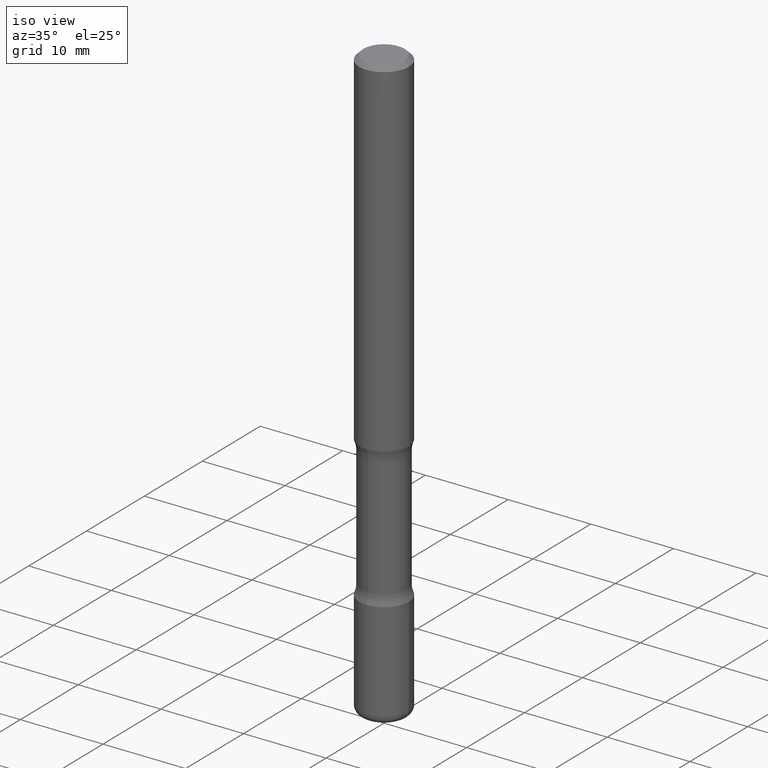
[diagram: clean part render]
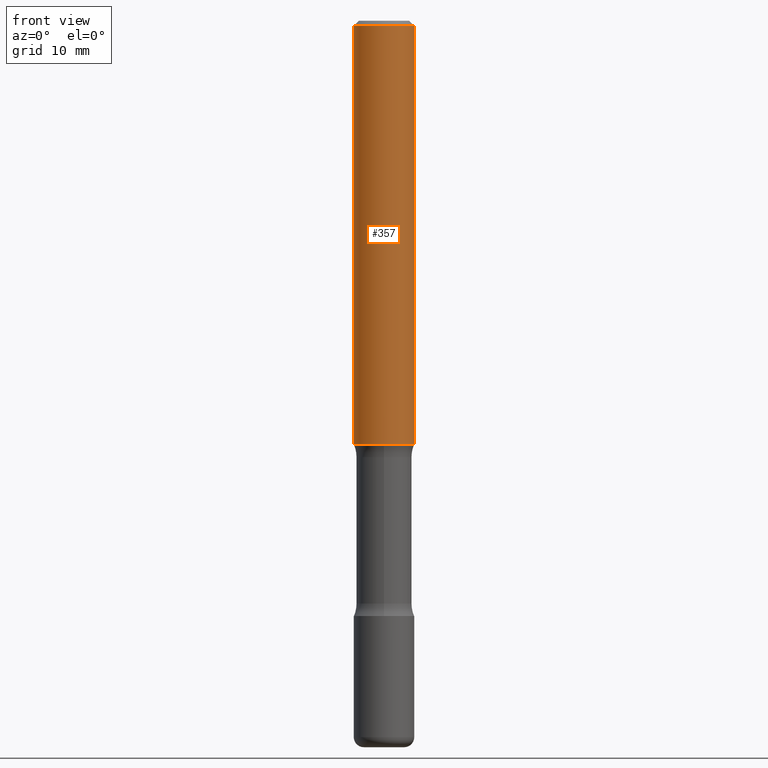
[diagram: tour spotlight — one face highlighted and labeled with its STEP entity id]
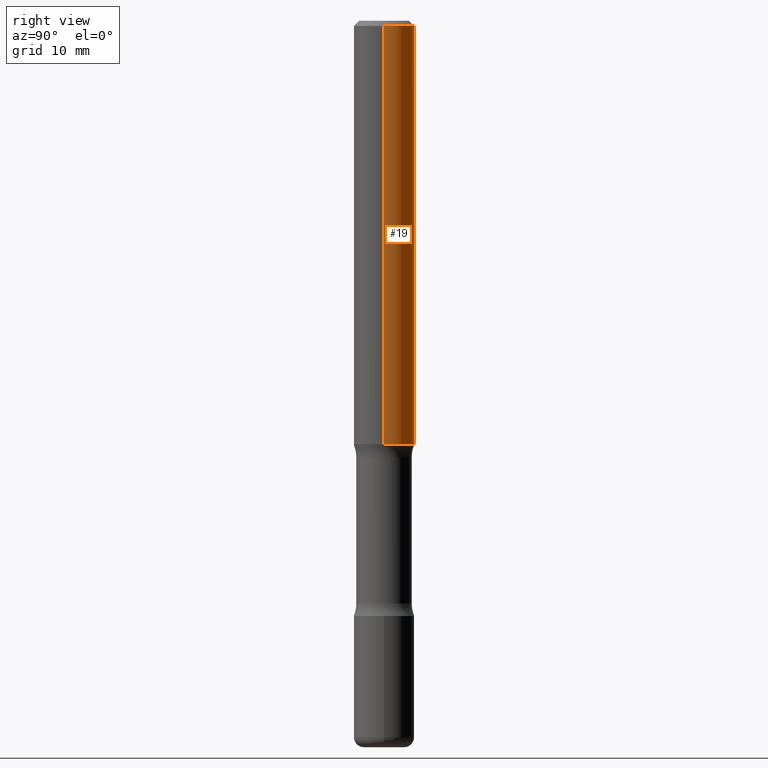
[diagram: tour spotlight — one face highlighted and labeled with its STEP entity id]
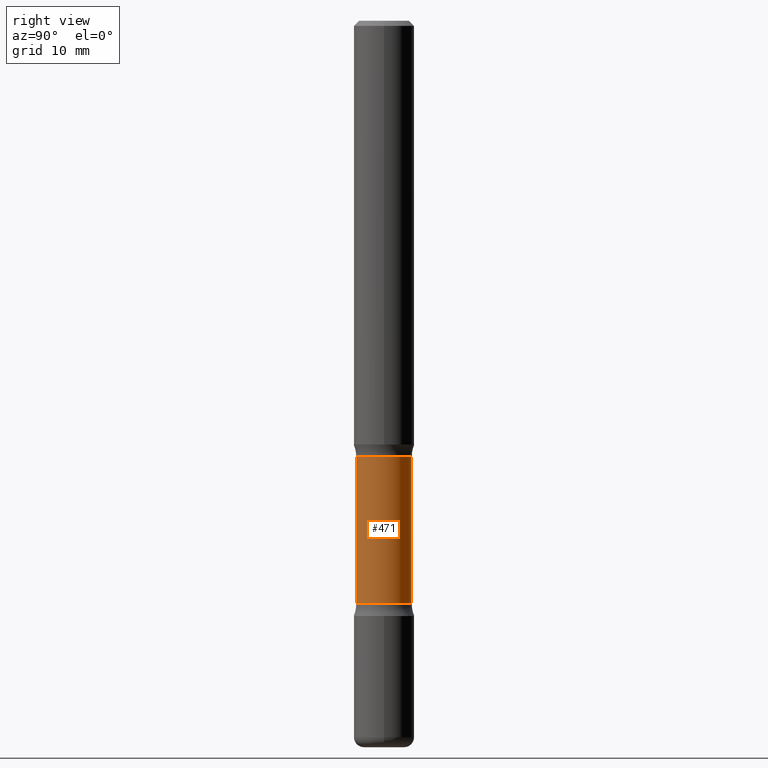
[diagram: tour spotlight — one face highlighted and labeled with its STEP entity id]
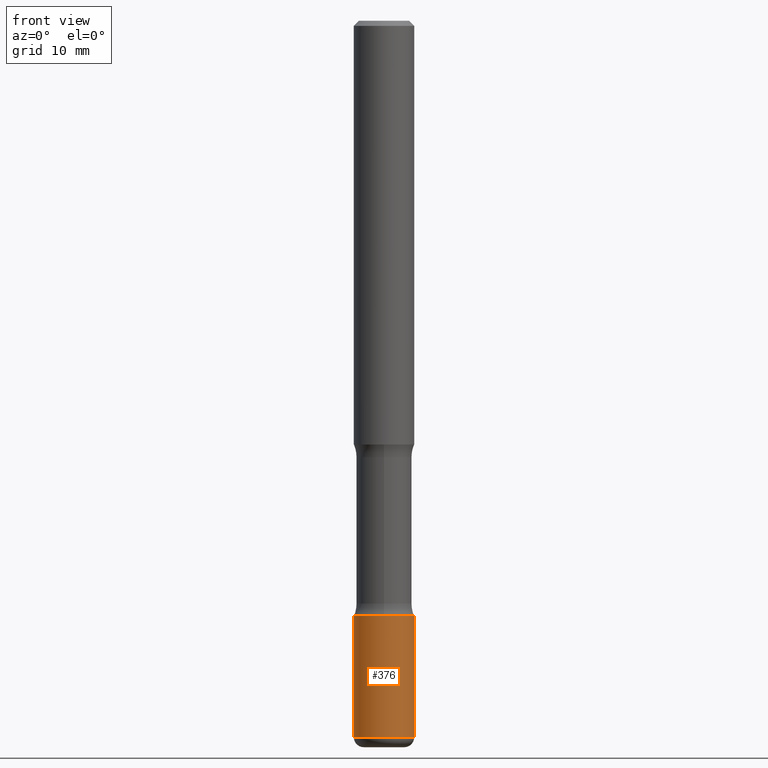
[diagram: tour spotlight — one face highlighted and labeled with its STEP entity id]
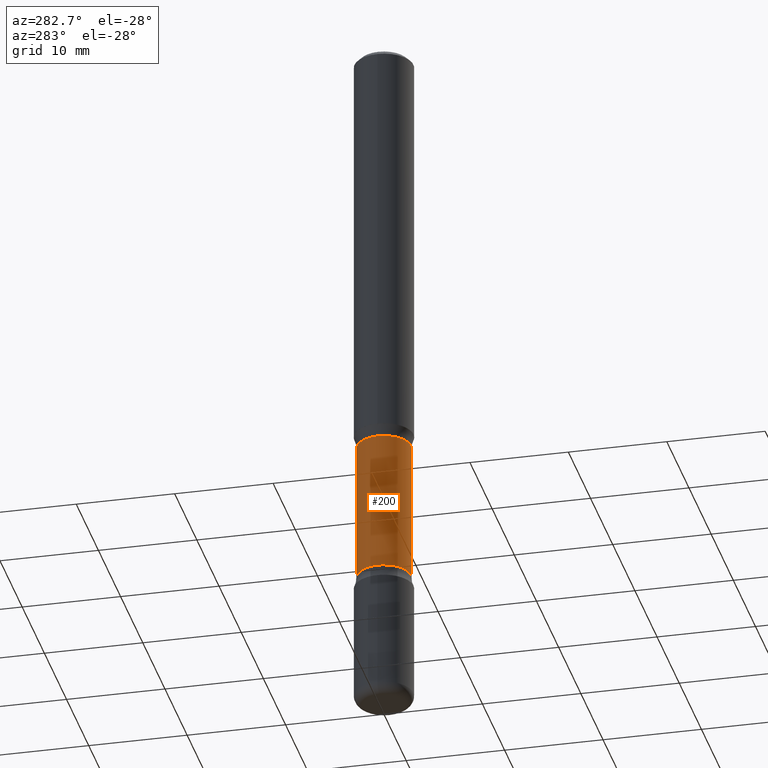
[diagram: tour spotlight — one face highlighted and labeled with its STEP entity id]
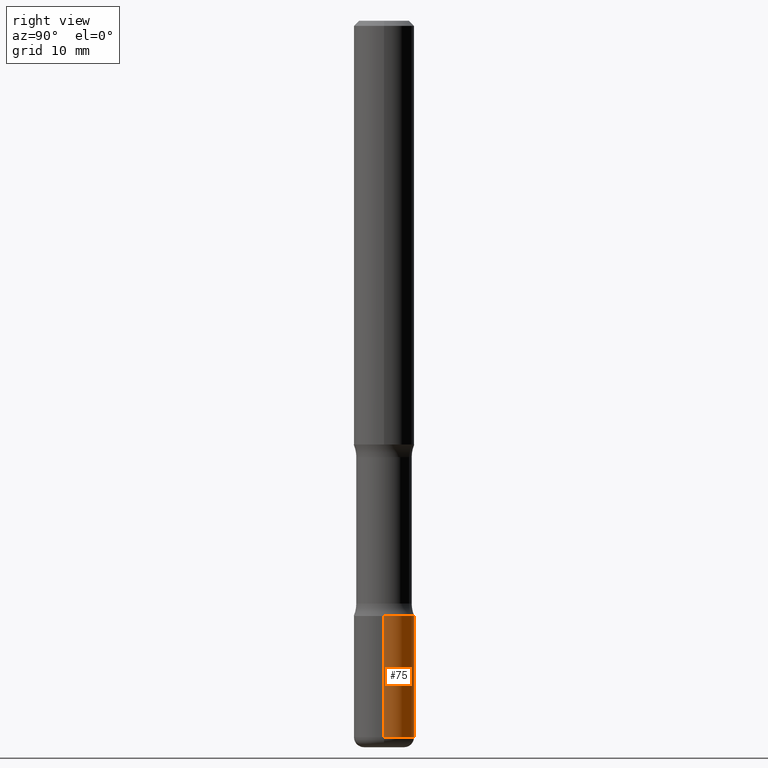
[diagram: tour spotlight — one face highlighted and labeled with its STEP entity id]
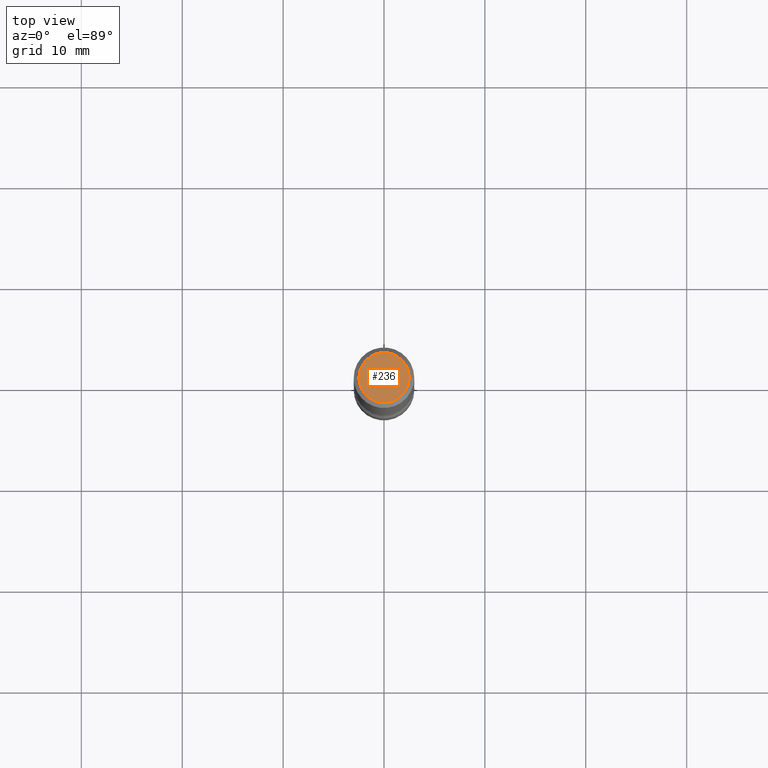
[diagram: tour spotlight — one face highlighted and labeled with its STEP entity id]
A machine part: a face-by-face anatomy tour. The part has 20 B-rep faces; the first image is the clean iso view, then the 7 largest visible faces are spotlighted one at a time (largest first), each with its STEP entity span.

Face 1 — front view, entity #357. In plain terms, the highlighted cylindrical surface (edge-blend (fillet) strip) has radius 2.9997 mm, axis along (-0, 0, 1).
Definition (entity closure, byte-faithful):
#16 = ORIENTED_EDGE ( 'NONE', *, *, #218, .T. ) ;
#26 = DIRECTION ( 'NONE',  ( 1.000000000000000000, -6.982962677686266711E-15, 4.876176775795936353E-29 ) ) ;
#89 = CARTESIAN_POINT ( 'NONE',  ( -0.1181000000000003713, 8.391509709326809581E-16, -5.809262341591062001E-30 ) ) ;
#98 = CARTESIAN_POINT ( 'NONE',  ( 0.1181000000000003713, -8.246878922347507278E-16, 5.758764772215018657E-30 ) ) ;
#112 = DIRECTION ( 'NONE',  ( -2.445468806185136597E-29, 3.491481338843145583E-15, 1.000000000000000000 ) ) ;
#120 = CYLINDRICAL_SURFACE ( 'NONE', #277, 0.1181000000000003713 ) ;
#131 = ORIENTED_EDGE ( 'NONE', *, *, #505, .F. ) ;
#137 = VERTEX_POINT ( 'NONE', #536 ) ;
#157 = DIRECTION ( 'NONE',  ( 1.000000000000000000, -6.982962677686267499E-15, 0.000000000000000000 ) ) ;
#162 = CARTESIAN_POINT ( 'NONE',  ( -0.1181000000000001632, 7.548582654578862463E-16, -0.02000000000000006981 ) ) ;
#183 = DIRECTION ( 'NONE',  ( -2.445468806185136877E-29, 3.491481338843145188E-15, 1.000000000000000000 ) ) ;
#197 = VECTOR ( 'NONE', #392, 39.37007874015748143 ) ;
#218 = EDGE_CURVE ( 'NONE', #137, #523, #401, .T. ) ;
#229 = VECTOR ( 'NONE', #183, 39.37007874015748143 ) ;
#242 = ORIENTED_EDGE ( 'NONE', *, *, #527, .T. ) ;
#253 = LINE ( 'NONE', #89, #197 ) ;
#277 = AXIS2_PLACEMENT_3D ( 'NONE', #420, #416, #26 ) ;
#286 = FACE_OUTER_BOUND ( 'NONE', #470, .T. ) ;
#293 = CARTESIAN_POINT ( 'NONE',  ( -0.1181000000000005795, -2.082346039344311366E-15, -1.653499999999998638 ) ) ;
#297 = DIRECTION ( 'NONE',  ( -2.445468806185136597E-29, 3.491481338843145583E-15, 1.000000000000000000 ) ) ;
#299 = EDGE_CURVE ( 'NONE', #349, #523, #312, .T. ) ;
#312 = CIRCLE ( 'NONE', #434, 0.1181000000000001632 ) ;
#349 = VERTEX_POINT ( 'NONE', #162 ) ;
#357 = ADVANCED_FACE ( 'NONE', ( #286 ), #120, .T. ) ;
#358 = VERTEX_POINT ( 'NONE', #293 ) ;
#377 = CARTESIAN_POINT ( 'NONE',  ( 4.890937612370289799E-31, -6.982962677686315028E-17, -0.02000000000000006981 ) ) ;
#388 = CARTESIAN_POINT ( 'NONE',  ( 4.043582671027119838E-29, -5.773164393777136338E-15, -1.653499999999998638 ) ) ;
#392 = DIRECTION ( 'NONE',  ( -2.445468806185136877E-29, 3.491481338843145188E-15, 1.000000000000000000 ) ) ;
#401 = LINE ( 'NONE', #98, #229 ) ;
#416 = DIRECTION ( 'NONE',  ( -2.445468806185136597E-29, 3.491481338843145583E-15, 1.000000000000000000 ) ) ;
#417 = CIRCLE ( 'NONE', #491, 0.1181000000000005795 ) ;
#420 = CARTESIAN_POINT ( 'NONE',  ( 0.000000000000000000, 0.000000000000000000, 0.000000000000000000 ) ) ;
#432 = CARTESIAN_POINT ( 'NONE',  ( 0.1181000000000001632, -8.800544403136822180E-16, -0.02000000000000006981 ) ) ;
#434 = AXIS2_PLACEMENT_3D ( 'NONE', #377, #112, #157 ) ;
#470 = EDGE_LOOP ( 'NONE', ( #131, #242, #16, #520 ) ) ;
#491 = AXIS2_PLACEMENT_3D ( 'NONE', #388, #297, #516 ) ;
#505 = EDGE_CURVE ( 'NONE', #358, #349, #253, .T. ) ;
#516 = DIRECTION ( 'NONE',  ( 1.000000000000000000, -6.982962677686262766E-15, 0.000000000000000000 ) ) ;
#520 = ORIENTED_EDGE ( 'NONE', *, *, #299, .F. ) ;
#523 = VERTEX_POINT ( 'NONE', #432 ) ;
#527 = EDGE_CURVE ( 'NONE', #358, #137, #417, .T. ) ;
#536 = CARTESIAN_POINT ( 'NONE',  ( 0.1181000000000005795, -6.597852286011887756E-15, -1.653499999999998638 ) ) ;

Face 2 — right view, entity #19. In plain terms, the highlighted cylindrical surface (edge-blend (fillet) strip) has radius 2.9997 mm, axis along (-0, 0, 1).
Definition (entity closure, byte-faithful):
#5 = CARTESIAN_POINT ( 'NONE',  ( 0.000000000000000000, 0.000000000000000000, 0.000000000000000000 ) ) ;
#15 = DIRECTION ( 'NONE',  ( -2.445468806185136597E-29, 3.491481338843145583E-15, 1.000000000000000000 ) ) ;
#19 = ADVANCED_FACE ( 'NONE', ( #129 ), #254, .T. ) ;
#36 = AXIS2_PLACEMENT_3D ( 'NONE', #5, #395, #337 ) ;
#61 = ORIENTED_EDGE ( 'NONE', *, *, #316, .F. ) ;
#89 = CARTESIAN_POINT ( 'NONE',  ( -0.1181000000000003713, 8.391509709326809581E-16, -5.809262341591062001E-30 ) ) ;
#98 = CARTESIAN_POINT ( 'NONE',  ( 0.1181000000000003713, -8.246878922347507278E-16, 5.758764772215018657E-30 ) ) ;
#103 = ORIENTED_EDGE ( 'NONE', *, *, #218, .F. ) ;
#109 = AXIS2_PLACEMENT_3D ( 'NONE', #152, #15, #311 ) ;
#113 = EDGE_LOOP ( 'NONE', ( #370, #415, #61, #103 ) ) ;
#129 = FACE_OUTER_BOUND ( 'NONE', #113, .T. ) ;
#137 = VERTEX_POINT ( 'NONE', #536 ) ;
#152 = CARTESIAN_POINT ( 'NONE',  ( 4.043582671027119838E-29, -5.773164393777136338E-15, -1.653499999999998638 ) ) ;
#158 = DIRECTION ( 'NONE',  ( 1.000000000000000000, -6.982962677686267499E-15, 0.000000000000000000 ) ) ;
#162 = CARTESIAN_POINT ( 'NONE',  ( -0.1181000000000001632, 7.548582654578862463E-16, -0.02000000000000006981 ) ) ;
#169 = AXIS2_PLACEMENT_3D ( 'NONE', #510, #414, #158 ) ;
#183 = DIRECTION ( 'NONE',  ( -2.445468806185136877E-29, 3.491481338843145188E-15, 1.000000000000000000 ) ) ;
#189 = EDGE_CURVE ( 'NONE', #137, #358, #472, .T. ) ;
#197 = VECTOR ( 'NONE', #392, 39.37007874015748143 ) ;
#218 = EDGE_CURVE ( 'NONE', #137, #523, #401, .T. ) ;
#229 = VECTOR ( 'NONE', #183, 39.37007874015748143 ) ;
#253 = LINE ( 'NONE', #89, #197 ) ;
#254 = CYLINDRICAL_SURFACE ( 'NONE', #36, 0.1181000000000003713 ) ;
#293 = CARTESIAN_POINT ( 'NONE',  ( -0.1181000000000005795, -2.082346039344311366E-15, -1.653499999999998638 ) ) ;
#311 = DIRECTION ( 'NONE',  ( 1.000000000000000000, -6.982962677686262766E-15, 0.000000000000000000 ) ) ;
#316 = EDGE_CURVE ( 'NONE', #523, #349, #324, .T. ) ;
#324 = CIRCLE ( 'NONE', #169, 0.1181000000000001632 ) ;
#337 = DIRECTION ( 'NONE',  ( 1.000000000000000000, -6.982962677686266711E-15, 4.876176775795936353E-29 ) ) ;
#349 = VERTEX_POINT ( 'NONE', #162 ) ;
#358 = VERTEX_POINT ( 'NONE', #293 ) ;
#370 = ORIENTED_EDGE ( 'NONE', *, *, #189, .T. ) ;
#392 = DIRECTION ( 'NONE',  ( -2.445468806185136877E-29, 3.491481338843145188E-15, 1.000000000000000000 ) ) ;
#395 = DIRECTION ( 'NONE',  ( -2.445468806185136597E-29, 3.491481338843145583E-15, 1.000000000000000000 ) ) ;
#401 = LINE ( 'NONE', #98, #229 ) ;
#414 = DIRECTION ( 'NONE',  ( -2.445468806185136597E-29, 3.491481338843145583E-15, 1.000000000000000000 ) ) ;
#415 = ORIENTED_EDGE ( 'NONE', *, *, #505, .T. ) ;
#432 = CARTESIAN_POINT ( 'NONE',  ( 0.1181000000000001632, -8.800544403136822180E-16, -0.02000000000000006981 ) ) ;
#472 = CIRCLE ( 'NONE', #109, 0.1181000000000005795 ) ;
#505 = EDGE_CURVE ( 'NONE', #358, #349, #253, .T. ) ;
#510 = CARTESIAN_POINT ( 'NONE',  ( 4.890937612370289799E-31, -6.982962677686315028E-17, -0.02000000000000006981 ) ) ;
#523 = VERTEX_POINT ( 'NONE', #432 ) ;
#536 = CARTESIAN_POINT ( 'NONE',  ( 0.1181000000000005795, -6.597852286011887756E-15, -1.653499999999998638 ) ) ;

Face 3 — right view, entity #471. In plain terms, the highlighted cylindrical surface (edge-blend (fillet) strip) has radius 2.7445 mm, axis along (0, -0, -1).
Definition (entity closure, byte-faithful):
#4 = VERTEX_POINT ( 'NONE', #171 ) ;
#11 = AXIS2_PLACEMENT_3D ( 'NONE', #390, #481, #393 ) ;
#40 = DIRECTION ( 'NONE',  ( 6.982962677686265922E-15, 1.000000000000000000, -2.528318365260769736E-15 ) ) ;
#43 = CARTESIAN_POINT ( 'NONE',  ( 7.545091173240566728E-16, 0.1080499999999920691, -2.273692999480724897 ) ) ;
#57 = DIRECTION ( 'NONE',  ( 2.515355941959131799E-29, -3.391398982686043015E-15, -1.000000000000000000 ) ) ;
#68 = EDGE_CURVE ( 'NONE', #475, #232, #248, .T. ) ;
#85 = DIRECTION ( 'NONE',  ( 2.515355941959131519E-29, -3.391398982686043410E-15, -1.000000000000000000 ) ) ;
#88 = VECTOR ( 'NONE', #334, 39.37007874015748143 ) ;
#114 = LINE ( 'NONE', #331, #88 ) ;
#123 = EDGE_CURVE ( 'NONE', #4, #232, #314, .T. ) ;
#150 = EDGE_LOOP ( 'NONE', ( #542, #379, #173, #488 ) ) ;
#155 = CIRCLE ( 'NONE', #333, 0.1080500000000000627 ) ;
#171 = CARTESIAN_POINT ( 'NONE',  ( -7.757508110979756422E-16, -0.1080500000000060579, -1.702607000519272828 ) ) ;
#173 = ORIENTED_EDGE ( 'NONE', *, *, #68, .F. ) ;
#202 = CARTESIAN_POINT ( 'NONE',  ( 7.545091173240426705E-16, 0.1080499999999940536, -1.702607000519273273 ) ) ;
#210 = CYLINDRICAL_SURFACE ( 'NONE', #482, 0.1080500000000000210 ) ;
#232 = VERTEX_POINT ( 'NONE', #528 ) ;
#248 = CIRCLE ( 'NONE', #11, 0.1080500000000000071 ) ;
#295 = FACE_OUTER_BOUND ( 'NONE', #150, .T. ) ;
#305 = EDGE_CURVE ( 'NONE', #367, #475, #114, .T. ) ;
#314 = LINE ( 'NONE', #356, #489 ) ;
#331 = CARTESIAN_POINT ( 'NONE',  ( 7.545091173240708723E-16, 0.1080499999999901678, -2.834599999999999120 ) ) ;
#333 = AXIS2_PLACEMENT_3D ( 'NONE', #436, #383, #40 ) ;
#334 = DIRECTION ( 'NONE',  ( 2.515355941959131799E-29, -3.391398982686043015E-15, -1.000000000000000000 ) ) ;
#338 = DIRECTION ( 'NONE',  ( 6.982962677686265922E-15, 1.000000000000000000, -5.056636730521541050E-15 ) ) ;
#356 = CARTESIAN_POINT ( 'NONE',  ( -7.412768086591444935E-16, -0.1080500000000098743, -2.834599999999998232 ) ) ;
#367 = VERTEX_POINT ( 'NONE', #202 ) ;
#379 = ORIENTED_EDGE ( 'NONE', *, *, #123, .T. ) ;
#383 = DIRECTION ( 'NONE',  ( 2.515355941959131519E-29, -3.391398982686043410E-15, -1.000000000000000000 ) ) ;
#390 = CARTESIAN_POINT ( 'NONE',  ( 5.556813357458885632E-29, -7.943471422261023875E-15, -2.273692999480724453 ) ) ;
#393 = DIRECTION ( 'NONE',  ( 6.982962677686265922E-15, 1.000000000000000000, -2.528318365260770920E-15 ) ) ;
#436 = CARTESIAN_POINT ( 'NONE',  ( 4.120328796601531988E-29, -6.006690946356916109E-15, -1.702607000519273051 ) ) ;
#454 = EDGE_CURVE ( 'NONE', #367, #4, #155, .T. ) ;
#471 = ADVANCED_FACE ( 'NONE', ( #295 ), #210, .T. ) ;
#475 = VERTEX_POINT ( 'NONE', #43 ) ;
#481 = DIRECTION ( 'NONE',  ( 2.515355941959131519E-29, -3.391398982686043410E-15, -1.000000000000000000 ) ) ;
#482 = AXIS2_PLACEMENT_3D ( 'NONE', #557, #85, #338 ) ;
#488 = ORIENTED_EDGE ( 'NONE', *, *, #305, .F. ) ;
#489 = VECTOR ( 'NONE', #57, 39.37007874015748143 ) ;
#528 = CARTESIAN_POINT ( 'NONE',  ( -7.757508110979598650E-16, -0.1080500000000079452, -2.273692999480724009 ) ) ;
#542 = ORIENTED_EDGE ( 'NONE', *, *, #454, .T. ) ;
#557 = CARTESIAN_POINT ( 'NONE',  ( 6.967694114101516369E-29, -9.845730853203571031E-15, -2.834599999999998676 ) ) ;

Face 4 — front view, entity #376. In plain terms, the highlighted cylindrical surface (edge-blend (fillet) strip) has radius 2.9997 mm, axis along (-0, 0, 1).
Definition (entity closure, byte-faithful):
#23 = VERTEX_POINT ( 'NONE', #301 ) ;
#29 = CYLINDRICAL_SURFACE ( 'NONE', #532, 0.1181000000000001077 ) ;
#30 = EDGE_CURVE ( 'NONE', #76, #23, #438, .T. ) ;
#35 = ORIENTED_EDGE ( 'NONE', *, *, #382, .T. ) ;
#64 = CIRCLE ( 'NONE', #456, 0.1181000000000000660 ) ;
#66 = ORIENTED_EDGE ( 'NONE', *, *, #273, .F. ) ;
#70 = DIRECTION ( 'NONE',  ( -2.445468806185136877E-29, 3.491481338843145188E-15, 1.000000000000000000 ) ) ;
#74 = LINE ( 'NONE', #469, #288 ) ;
#76 = VERTEX_POINT ( 'NONE', #555 ) ;
#82 = DIRECTION ( 'NONE',  ( -2.445468806185136597E-29, 3.491481338843145583E-15, 1.000000000000000000 ) ) ;
#83 = EDGE_CURVE ( 'NONE', #76, #462, #437, .T. ) ;
#111 = VECTOR ( 'NONE', #384, 39.37007874015748143 ) ;
#195 = VERTEX_POINT ( 'NONE', #233 ) ;
#233 = CARTESIAN_POINT ( 'NONE',  ( 0.1181000000000000660, -8.934700746099602364E-15, -2.322799999999998644 ) ) ;
#245 = ORIENTED_EDGE ( 'NONE', *, *, #83, .T. ) ;
#249 = DIRECTION ( 'NONE',  ( 1.000000000000000000, -6.982962677686265133E-15, 0.000000000000000000 ) ) ;
#251 = ORIENTED_EDGE ( 'NONE', *, *, #30, .F. ) ;
#273 = EDGE_CURVE ( 'NONE', #23, #195, #64, .T. ) ;
#282 = CARTESIAN_POINT ( 'NONE',  ( 5.680334943006831795E-29, -8.110012853864854101E-15, -2.322799999999998644 ) ) ;
#288 = VECTOR ( 'NONE', #70, 39.37007874015748143 ) ;
#291 = DIRECTION ( 'NONE',  ( -2.445468806185136597E-29, 3.491481338843145583E-15, 1.000000000000000000 ) ) ;
#292 = AXIS2_PLACEMENT_3D ( 'NONE', #473, #82, #249 ) ;
#301 = CARTESIAN_POINT ( 'NONE',  ( -0.1181000000000000660, -8.095549775166928111E-15, -2.322799999999998644 ) ) ;
#330 = DIRECTION ( 'NONE',  ( -2.445468806185136597E-29, 3.491481338843145583E-15, 1.000000000000000000 ) ) ;
#335 = EDGE_LOOP ( 'NONE', ( #251, #245, #35, #66 ) ) ;
#376 = ADVANCED_FACE ( 'NONE', ( #461 ), #29, .T. ) ;
#382 = EDGE_CURVE ( 'NONE', #462, #195, #74, .T. ) ;
#384 = DIRECTION ( 'NONE',  ( -2.445468806185136877E-29, 3.491481338843145188E-15, 1.000000000000000000 ) ) ;
#437 = CIRCLE ( 'NONE', #292, 0.1181000000000001354 ) ;
#438 = LINE ( 'NONE', #440, #111 ) ;
#440 = CARTESIAN_POINT ( 'NONE',  ( -0.1181000000000001077, 8.391509709326790846E-16, -5.809262341591049389E-30 ) ) ;
#456 = AXIS2_PLACEMENT_3D ( 'NONE', #282, #291, #468 ) ;
#461 = FACE_OUTER_BOUND ( 'NONE', #335, .T. ) ;
#462 = VERTEX_POINT ( 'NONE', #480 ) ;
#468 = DIRECTION ( 'NONE',  ( 1.000000000000000000, -6.982962677686269077E-15, 0.000000000000000000 ) ) ;
#469 = CARTESIAN_POINT ( 'NONE',  ( 0.1181000000000001077, -8.246878922347488542E-16, 5.758764772215005345E-30 ) ) ;
#473 = CARTESIAN_POINT ( 'NONE',  ( 6.835574407048691801E-29, -9.759388638334358515E-15, -2.795199999999999019 ) ) ;
#480 = CARTESIAN_POINT ( 'NONE',  ( 0.1181000000000003020, -1.058407653056910836E-14, -2.795199999999999019 ) ) ;
#504 = CARTESIAN_POINT ( 'NONE',  ( 0.000000000000000000, 0.000000000000000000, 0.000000000000000000 ) ) ;
#532 = AXIS2_PLACEMENT_3D ( 'NONE', #504, #330, #551 ) ;
#551 = DIRECTION ( 'NONE',  ( 1.000000000000000000, -6.982962677686266711E-15, 4.876176775795935793E-29 ) ) ;
#555 = CARTESIAN_POINT ( 'NONE',  ( -0.1181000000000003020, -8.920237667401677951E-15, -2.795199999999999019 ) ) ;

Face 5 — auxiliary view, entity #200. In plain terms, the highlighted cylindrical surface (edge-blend (fillet) strip) has radius 2.7445 mm, axis along (0, -0, -1).
Definition (entity closure, byte-faithful):
#4 = VERTEX_POINT ( 'NONE', #171 ) ;
#6 = EDGE_CURVE ( 'NONE', #232, #475, #419, .T. ) ;
#18 = CYLINDRICAL_SURFACE ( 'NONE', #359, 0.1080500000000000210 ) ;
#43 = CARTESIAN_POINT ( 'NONE',  ( 7.545091173240566728E-16, 0.1080499999999920691, -2.273692999480724897 ) ) ;
#47 = DIRECTION ( 'NONE',  ( 2.515355941959131519E-29, -3.391398982686043410E-15, -1.000000000000000000 ) ) ;
#57 = DIRECTION ( 'NONE',  ( 2.515355941959131799E-29, -3.391398982686043015E-15, -1.000000000000000000 ) ) ;
#88 = VECTOR ( 'NONE', #334, 39.37007874015748143 ) ;
#114 = LINE ( 'NONE', #331, #88 ) ;
#121 = ORIENTED_EDGE ( 'NONE', *, *, #123, .F. ) ;
#123 = EDGE_CURVE ( 'NONE', #4, #232, #314, .T. ) ;
#140 = EDGE_CURVE ( 'NONE', #4, #367, #141, .T. ) ;
#141 = CIRCLE ( 'NONE', #255, 0.1080500000000000627 ) ;
#156 = ORIENTED_EDGE ( 'NONE', *, *, #305, .T. ) ;
#163 = ORIENTED_EDGE ( 'NONE', *, *, #140, .T. ) ;
#171 = CARTESIAN_POINT ( 'NONE',  ( -7.757508110979756422E-16, -0.1080500000000060579, -1.702607000519272828 ) ) ;
#179 = CARTESIAN_POINT ( 'NONE',  ( 4.120328796601531988E-29, -6.006690946356916109E-15, -1.702607000519273051 ) ) ;
#187 = CARTESIAN_POINT ( 'NONE',  ( 6.967694114101516369E-29, -9.845730853203571031E-15, -2.834599999999998676 ) ) ;
#200 = ADVANCED_FACE ( 'NONE', ( #404 ), #18, .T. ) ;
#202 = CARTESIAN_POINT ( 'NONE',  ( 7.545091173240426705E-16, 0.1080499999999940536, -1.702607000519273273 ) ) ;
#232 = VERTEX_POINT ( 'NONE', #528 ) ;
#255 = AXIS2_PLACEMENT_3D ( 'NONE', #179, #270, #278 ) ;
#268 = DIRECTION ( 'NONE',  ( 6.982962677686265922E-15, 1.000000000000000000, -5.056636730521541050E-15 ) ) ;
#270 = DIRECTION ( 'NONE',  ( 2.515355941959131519E-29, -3.391398982686043410E-15, -1.000000000000000000 ) ) ;
#278 = DIRECTION ( 'NONE',  ( 6.982962677686265922E-15, 1.000000000000000000, -2.528318365260769736E-15 ) ) ;
#296 = CARTESIAN_POINT ( 'NONE',  ( 5.556813357458885632E-29, -7.943471422261023875E-15, -2.273692999480724453 ) ) ;
#305 = EDGE_CURVE ( 'NONE', #367, #475, #114, .T. ) ;
#314 = LINE ( 'NONE', #356, #489 ) ;
#318 = DIRECTION ( 'NONE',  ( 2.515355941959131519E-29, -3.391398982686043410E-15, -1.000000000000000000 ) ) ;
#331 = CARTESIAN_POINT ( 'NONE',  ( 7.545091173240708723E-16, 0.1080499999999901678, -2.834599999999999120 ) ) ;
#334 = DIRECTION ( 'NONE',  ( 2.515355941959131799E-29, -3.391398982686043015E-15, -1.000000000000000000 ) ) ;
#356 = CARTESIAN_POINT ( 'NONE',  ( -7.412768086591444935E-16, -0.1080500000000098743, -2.834599999999998232 ) ) ;
#359 = AXIS2_PLACEMENT_3D ( 'NONE', #187, #318, #268 ) ;
#367 = VERTEX_POINT ( 'NONE', #202 ) ;
#404 = FACE_OUTER_BOUND ( 'NONE', #553, .T. ) ;
#410 = AXIS2_PLACEMENT_3D ( 'NONE', #296, #47, #525 ) ;
#412 = ORIENTED_EDGE ( 'NONE', *, *, #6, .F. ) ;
#419 = CIRCLE ( 'NONE', #410, 0.1080500000000000071 ) ;
#475 = VERTEX_POINT ( 'NONE', #43 ) ;
#489 = VECTOR ( 'NONE', #57, 39.37007874015748143 ) ;
#525 = DIRECTION ( 'NONE',  ( 6.982962677686265922E-15, 1.000000000000000000, -2.528318365260770920E-15 ) ) ;
#528 = CARTESIAN_POINT ( 'NONE',  ( -7.757508110979598650E-16, -0.1080500000000079452, -2.273692999480724009 ) ) ;
#553 = EDGE_LOOP ( 'NONE', ( #121, #163, #156, #412 ) ) ;

Face 6 — right view, entity #75. In plain terms, the highlighted cylindrical surface (edge-blend (fillet) strip) has radius 2.9997 mm, axis along (-0, 0, 1).
Definition (entity closure, byte-faithful):
#23 = VERTEX_POINT ( 'NONE', #301 ) ;
#25 = EDGE_CURVE ( 'NONE', #195, #23, #281, .T. ) ;
#30 = EDGE_CURVE ( 'NONE', #76, #23, #438, .T. ) ;
#34 = AXIS2_PLACEMENT_3D ( 'NONE', #235, #237, #332 ) ;
#38 = DIRECTION ( 'NONE',  ( -2.445468806185136597E-29, 3.491481338843145583E-15, 1.000000000000000000 ) ) ;
#70 = DIRECTION ( 'NONE',  ( -2.445468806185136877E-29, 3.491481338843145188E-15, 1.000000000000000000 ) ) ;
#74 = LINE ( 'NONE', #469, #288 ) ;
#75 = ADVANCED_FACE ( 'NONE', ( #176 ), #134, .T. ) ;
#76 = VERTEX_POINT ( 'NONE', #555 ) ;
#87 = ORIENTED_EDGE ( 'NONE', *, *, #382, .F. ) ;
#93 = CARTESIAN_POINT ( 'NONE',  ( 0.000000000000000000, 0.000000000000000000, 0.000000000000000000 ) ) ;
#111 = VECTOR ( 'NONE', #384, 39.37007874015748143 ) ;
#134 = CYLINDRICAL_SURFACE ( 'NONE', #352, 0.1181000000000001077 ) ;
#166 = DIRECTION ( 'NONE',  ( 1.000000000000000000, -6.982962677686266711E-15, 4.876176775795935793E-29 ) ) ;
#176 = FACE_OUTER_BOUND ( 'NONE', #323, .T. ) ;
#195 = VERTEX_POINT ( 'NONE', #233 ) ;
#233 = CARTESIAN_POINT ( 'NONE',  ( 0.1181000000000000660, -8.934700746099602364E-15, -2.322799999999998644 ) ) ;
#235 = CARTESIAN_POINT ( 'NONE',  ( 6.835574407048691801E-29, -9.759388638334358515E-15, -2.795199999999999019 ) ) ;
#237 = DIRECTION ( 'NONE',  ( -2.445468806185136597E-29, 3.491481338843145583E-15, 1.000000000000000000 ) ) ;
#246 = CIRCLE ( 'NONE', #34, 0.1181000000000001354 ) ;
#260 = DIRECTION ( 'NONE',  ( -2.445468806185136597E-29, 3.491481338843145583E-15, 1.000000000000000000 ) ) ;
#281 = CIRCLE ( 'NONE', #329, 0.1181000000000000660 ) ;
#288 = VECTOR ( 'NONE', #70, 39.37007874015748143 ) ;
#301 = CARTESIAN_POINT ( 'NONE',  ( -0.1181000000000000660, -8.095549775166928111E-15, -2.322799999999998644 ) ) ;
#309 = ORIENTED_EDGE ( 'NONE', *, *, #30, .T. ) ;
#323 = EDGE_LOOP ( 'NONE', ( #540, #309, #478, #87 ) ) ;
#329 = AXIS2_PLACEMENT_3D ( 'NONE', #477, #38, #429 ) ;
#332 = DIRECTION ( 'NONE',  ( 1.000000000000000000, -6.982962677686265133E-15, 0.000000000000000000 ) ) ;
#352 = AXIS2_PLACEMENT_3D ( 'NONE', #93, #260, #166 ) ;
#368 = EDGE_CURVE ( 'NONE', #462, #76, #246, .T. ) ;
#382 = EDGE_CURVE ( 'NONE', #462, #195, #74, .T. ) ;
#384 = DIRECTION ( 'NONE',  ( -2.445468806185136877E-29, 3.491481338843145188E-15, 1.000000000000000000 ) ) ;
#429 = DIRECTION ( 'NONE',  ( 1.000000000000000000, -6.982962677686269077E-15, 0.000000000000000000 ) ) ;
#438 = LINE ( 'NONE', #440, #111 ) ;
#440 = CARTESIAN_POINT ( 'NONE',  ( -0.1181000000000001077, 8.391509709326790846E-16, -5.809262341591049389E-30 ) ) ;
#462 = VERTEX_POINT ( 'NONE', #480 ) ;
#469 = CARTESIAN_POINT ( 'NONE',  ( 0.1181000000000001077, -8.246878922347488542E-16, 5.758764772215005345E-30 ) ) ;
#477 = CARTESIAN_POINT ( 'NONE',  ( 5.680334943006831795E-29, -8.110012853864854101E-15, -2.322799999999998644 ) ) ;
#478 = ORIENTED_EDGE ( 'NONE', *, *, #25, .F. ) ;
#480 = CARTESIAN_POINT ( 'NONE',  ( 0.1181000000000003020, -1.058407653056910836E-14, -2.795199999999999019 ) ) ;
#540 = ORIENTED_EDGE ( 'NONE', *, *, #368, .T. ) ;
#555 = CARTESIAN_POINT ( 'NONE',  ( -0.1181000000000003020, -8.920237667401677951E-15, -2.795199999999999019 ) ) ;

Face 7 — top view, entity #236. In plain terms, the highlighted planar face has unit normal (0, -0, -1).
Definition (entity closure, byte-faithful):
#78 = EDGE_LOOP ( 'NONE', ( #207, #451 ) ) ;
#95 = DIRECTION ( 'NONE',  ( 1.000000000000000000, -6.982962677686265922E-15, 4.877161320636760066E-29 ) ) ;
#116 = CIRCLE ( 'NONE', #219, 0.09810000000000014542 ) ;
#130 = CARTESIAN_POINT ( 'NONE',  ( -0.09810000000000014542, 7.199434520694548930E-16, -3.414809992080820212E-17 ) ) ;
#136 = FACE_OUTER_BOUND ( 'NONE', #78, .T. ) ;
#207 = ORIENTED_EDGE ( 'NONE', *, *, #214, .T. ) ;
#212 = CIRCLE ( 'NONE', #501, 0.09810000000000014542 ) ;
#214 = EDGE_CURVE ( 'NONE', #503, #294, #116, .T. ) ;
#219 = AXIS2_PLACEMENT_3D ( 'NONE', #230, #409, #95 ) ;
#221 = PLANE ( 'NONE',  #304 ) ;
#230 = CARTESIAN_POINT ( 'NONE',  ( 8.350811314681758556E-46, -1.192274536304357760E-31, -3.414809992080329023E-17 ) ) ;
#236 = ADVANCED_FACE ( 'NONE', ( #136 ), #221, .F. ) ;
#294 = VERTEX_POINT ( 'NONE', #375 ) ;
#304 = AXIS2_PLACEMENT_3D ( 'NONE', #308, #486, #442 ) ;
#308 = CARTESIAN_POINT ( 'NONE',  ( 6.850286386810237370E-16, 0.09810000000000014542, -3.595883693009147092E-16 ) ) ;
#341 = EDGE_CURVE ( 'NONE', #294, #503, #212, .T. ) ;
#372 = CARTESIAN_POINT ( 'NONE',  ( 8.350811314681758556E-46, -1.192274536304357760E-31, -3.414809992080329023E-17 ) ) ;
#375 = CARTESIAN_POINT ( 'NONE',  ( 0.09810000000000014542, -7.765346469475353361E-16, -3.414809992079818112E-17 ) ) ;
#409 = DIRECTION ( 'NONE',  ( -2.445468806185136597E-29, 3.491481338843145583E-15, 1.000000000000000000 ) ) ;
#442 = DIRECTION ( 'NONE',  ( -1.000000000000000000, 6.982962677686265922E-15, -4.876176775795935793E-29 ) ) ;
#451 = ORIENTED_EDGE ( 'NONE', *, *, #341, .T. ) ;
#486 = DIRECTION ( 'NONE',  ( 2.438088387897960049E-29, -3.491481338843145188E-15, -1.000000000000000000 ) ) ;
#501 = AXIS2_PLACEMENT_3D ( 'NONE', #372, #506, #547 ) ;
#503 = VERTEX_POINT ( 'NONE', #130 ) ;
#506 = DIRECTION ( 'NONE',  ( -2.445468806185136597E-29, 3.491481338843145583E-15, 1.000000000000000000 ) ) ;
#547 = DIRECTION ( 'NONE',  ( 1.000000000000000000, -6.982962677686265922E-15, 4.877161320636760066E-29 ) ) ;